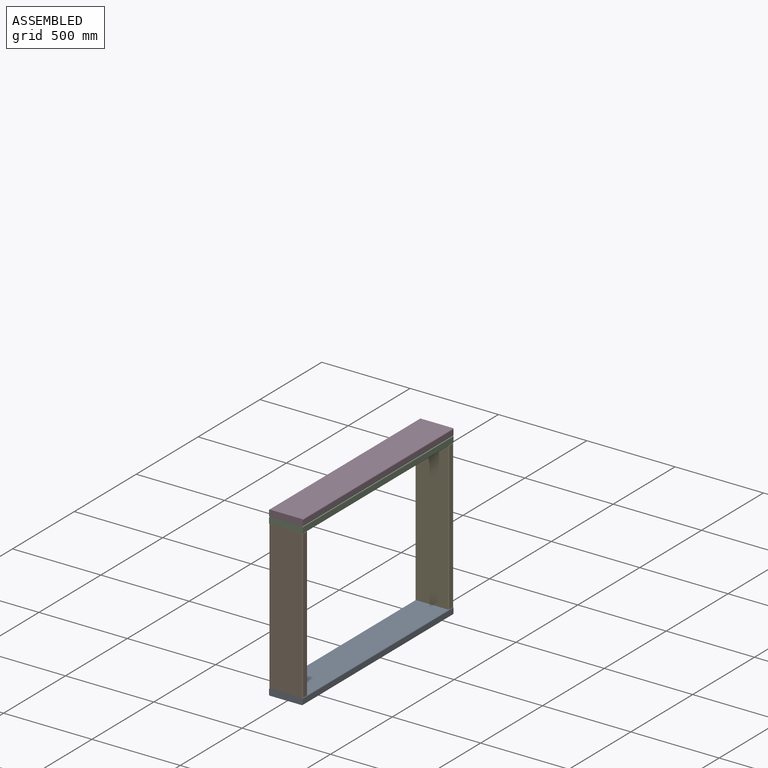
[diagram: assembled view]
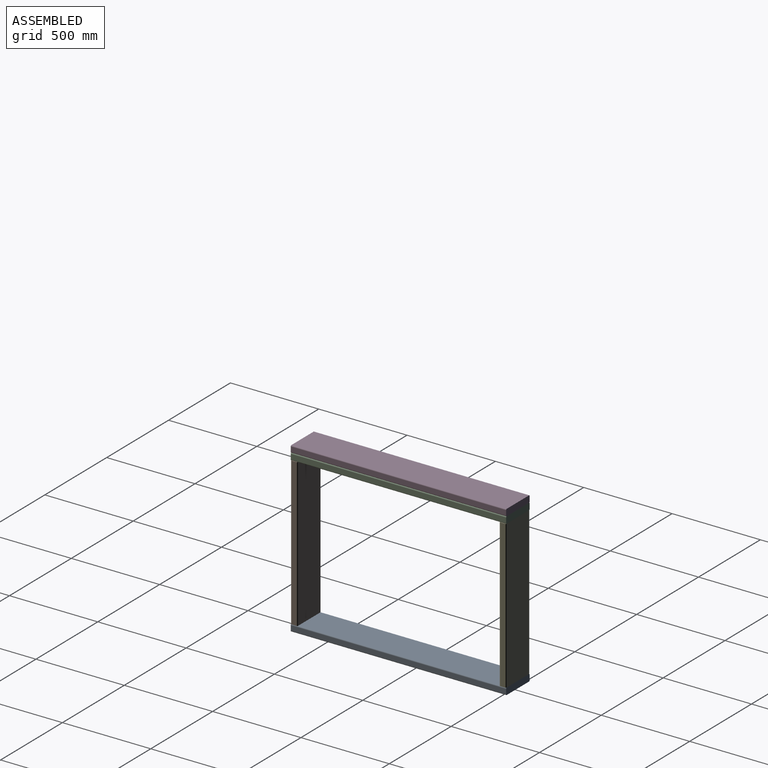
[diagram: assembled view, second angle]
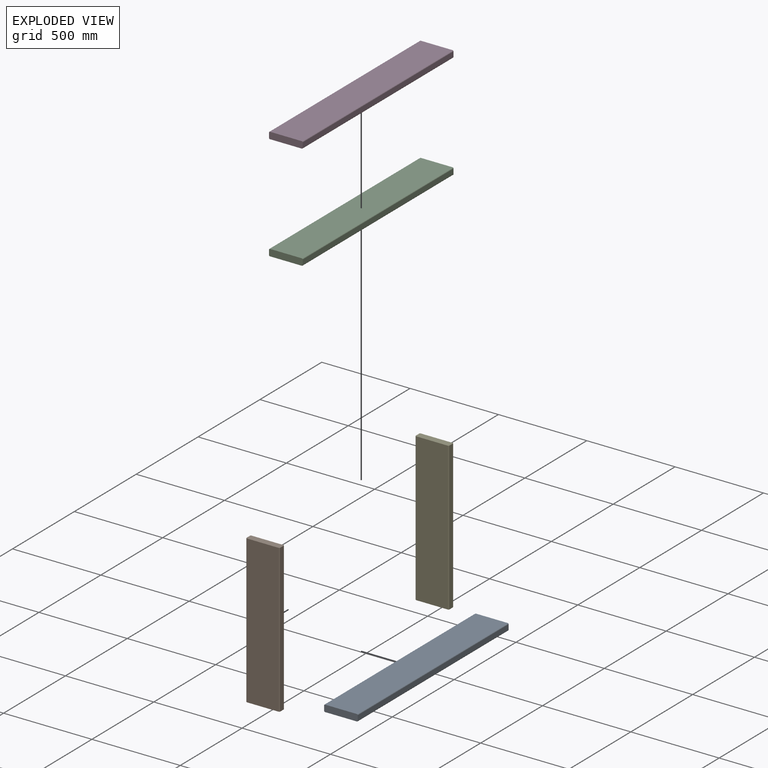
[diagram: exploded view]
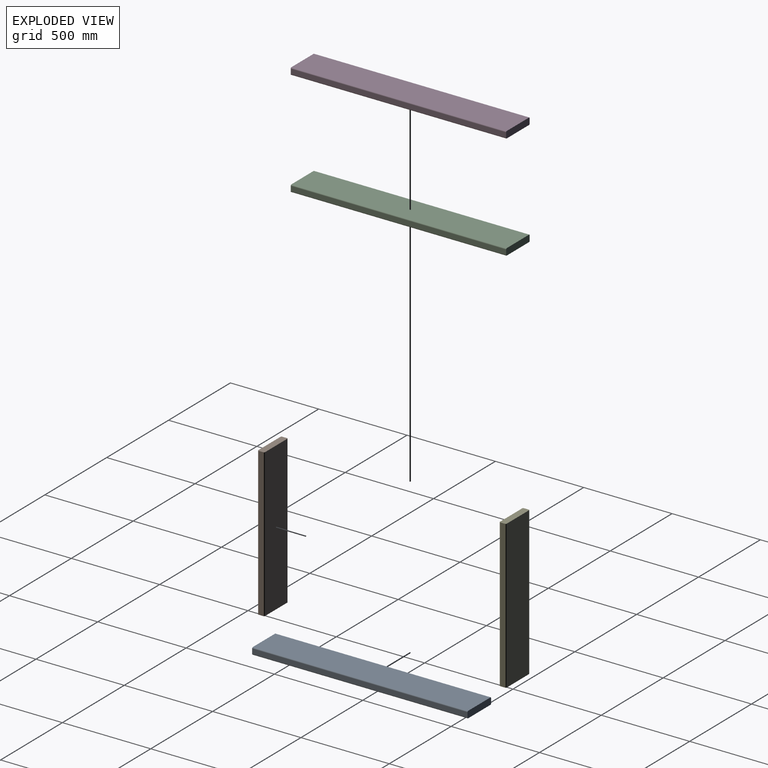
[diagram: exploded view, second angle]
ASSEMBLY  parts=5 mates=4
PART A: 10 faces, bbox 190.5x1219.2x38.1 mm
  f0: plane 1219.2x180.34mm, normal (0,0,1), area 219870.5mm2, adj f4,f5,f6,f9
  f1: plane 1219.2x27.94mm, normal (-1,0,0), area 34064.4mm2, adj f4,f5,f6,f7
  f2: plane 1219.2x180.34mm, normal (0,0,-1), area 219870.5mm2, adj f4,f5,f7,f8
  f3: plane 1219.2x27.94mm, normal (1,0,0), area 34064.4mm2, adj f4,f5,f8,f9
  f4: plane 190.5x38.1mm, normal (0,-1,0), area 7235.9mm2, adj f0,f1,f2,f3,f6,f7,f8,f9
  f5: plane 190.5x38.1mm, normal (0,1,0), area 7235.9mm2, adj f0,f1,f2,f3,f6,f7,f8,f9
  f6: cylinder r=5.08mm len=1219.2mm, axis (0,-1,0), area 9728.8mm2, adj f0,f1,f4,f5
  f7: cylinder r=5.08mm len=1219.2mm, axis (0,1,0), area 9728.8mm2, adj f1,f2,f4,f5
  f8: cylinder r=5.08mm len=1219.2mm, axis (0,-1,0), area 9728.8mm2, adj f2,f3,f4,f5
  f9: cylinder r=5.08mm len=1219.2mm, axis (0,1,0), area 9728.8mm2, adj f0,f3,f4,f5
PART B: 10 faces, bbox 190.5x838.2x38.1 mm
  f0: plane 838.2x180.34mm, normal (0,0,1), area 151161mm2, adj f4,f5,f6,f9
  f1: plane 838.2x27.94mm, normal (-1,0,0), area 23419.3mm2, adj f4,f5,f6,f7
  f2: plane 838.2x180.34mm, normal (0,0,-1), area 151161mm2, adj f4,f5,f7,f8
  f3: plane 838.2x27.94mm, normal (1,0,0), area 23419.3mm2, adj f4,f5,f8,f9
  f4: plane 190.5x38.1mm, normal (0,-1,0), area 7235.9mm2, adj f0,f1,f2,f3,f6,f7,f8,f9
  f5: plane 190.5x38.1mm, normal (0,1,0), area 7235.9mm2, adj f0,f1,f2,f3,f6,f7,f8,f9
  f6: cylinder r=5.08mm len=838.2mm, axis (0,-1,0), area 6688.5mm2, adj f0,f1,f4,f5
  f7: cylinder r=5.08mm len=838.2mm, axis (0,1,0), area 6688.5mm2, adj f1,f2,f4,f5
  f8: cylinder r=5.08mm len=838.2mm, axis (0,-1,0), area 6688.5mm2, adj f2,f3,f4,f5
  f9: cylinder r=5.08mm len=838.2mm, axis (0,1,0), area 6688.5mm2, adj f0,f3,f4,f5
PART C: same geometry as A
PART D: same geometry as A
PART E: same geometry as B
PLACE A t=(-2478.75,-1066.77,546.51)mm fixed
PLACE B rot(axis=(1,0,0),90deg) t=(-2745.84,-1657.32,984.66)mm
PLACE C rot(axis=(0,1,0),180deg) t=(-2478.75,-1066.77,1422.81)mm
PLACE D rot(axis=(1,0,0),180deg) t=(-2478.75,-1066.77,1460.91)mm
PLACE E rot(axis=(0,0.71,0.71),180deg) t=(-2211.66,-476.22,984.66)mm
MATE planar D.f0 <-> C.f2  axis (0,0,-1) through (-2478.75,-1066.77,1441.86)mm
MATE planar B.f0 <-> A.f4  axis (0,-1,0) through (-2478.75,-1676.37,565.56)mm
MATE planar C.f0 <-> E.f5  axis (0,0,-1) through (-2478.75,-457.17,1403.76)mm
MATE planar E.f0 <-> A.f5  axis (0,1,0) through (-2478.75,-457.17,565.56)mm
